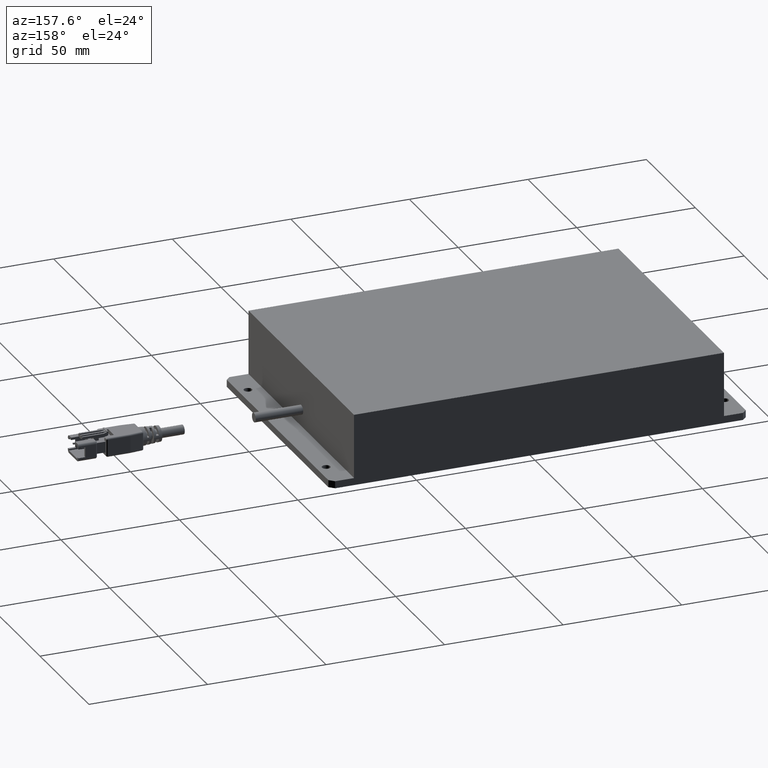
[diagram: clean part render]
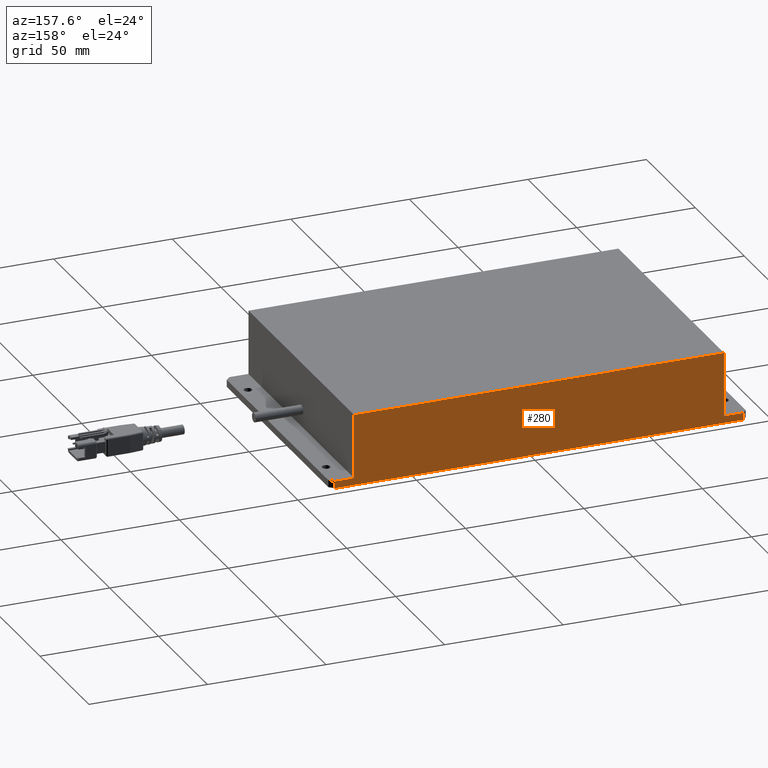
[diagram: same view with one face highlighted and labeled with its STEP entity id]
A machine part, auxiliary view. The second image highlights one B-rep face of the part: STEP entity #280.
In plain terms, the highlighted planar face has unit normal (0, 1, 0).
Its self-contained STEP definition (entity closure, byte-faithful):
#280=ADVANCED_FACE('0:8861',(#692),#693,.T.);
#692=FACE_OUTER_BOUND('',#1255,.T.);
#693=PLANE('',#1256);
#1255=EDGE_LOOP('',(#2262,#2263,#2264,#2265,#2266,#2267,#2268,#2269));
#1256=AXIS2_PLACEMENT_3D('',#2270,#2271,#2272);
#2262=ORIENTED_EDGE('',*,*,#3754,.F.);
#2263=ORIENTED_EDGE('',*,*,#3748,.T.);
#2264=ORIENTED_EDGE('',*,*,#3721,.T.);
#2265=ORIENTED_EDGE('',*,*,#3738,.T.);
#2266=ORIENTED_EDGE('',*,*,#3732,.F.);
#2267=ORIENTED_EDGE('',*,*,#3704,.F.);
#2268=ORIENTED_EDGE('',*,*,#3709,.T.);
#2269=ORIENTED_EDGE('',*,*,#3697,.T.);
#2270=CARTESIAN_POINT('',(-0.088,0.054,0.0));
#2271=DIRECTION('',(-0.0,1.0,0.0));
#2272=DIRECTION('',(0.0,0.0,1.0));
#3697=EDGE_CURVE('0:8906',#4314,#4311,#4315,.T.);
#3704=EDGE_CURVE('0:8903',#4325,#4321,#4327,.F.);
#3709=EDGE_CURVE('0:8987',#4325,#4314,#4333,.T.);
#3721=EDGE_CURVE('0:9002',#4353,#4354,#4355,.F.);
#3732=EDGE_CURVE('0:8990',#4321,#4373,#4374,.F.);
#3738=EDGE_CURVE('0:8969',#4354,#4373,#4382,.T.);
#3748=EDGE_CURVE('0:8927',#4393,#4353,#4394,.T.);
#3754=EDGE_CURVE('0:8984',#4393,#4311,#4401,.F.);
#4311=VERTEX_POINT('',#5210);
#4314=VERTEX_POINT('',#5214);
#4315=LINE('',#5215,#5216);
#4321=VERTEX_POINT('',#5224);
#4325=VERTEX_POINT('',#5230);
#4327=LINE('',#5233,#5234);
#4333=LINE('',#5240,#5241);
#4353=VERTEX_POINT('',#5266);
#4354=VERTEX_POINT('',#5267);
#4355=LINE('',#5268,#5269);
#4373=VERTEX_POINT('',#5294);
#4374=LINE('',#5295,#5296);
#4382=LINE('',#5308,#5309);
#4393=VERTEX_POINT('',#5325);
#4394=LINE('',#5326,#5327);
#4401=LINE('',#5335,#5336);
#5210=CARTESIAN_POINT('',(0.078,0.054,0.003));
#5214=CARTESIAN_POINT('',(0.078,0.054,0.03));
#5215=CARTESIAN_POINT('',(0.078,0.054,0.003));
#5216=VECTOR('',#6563,1.0);
#5224=CARTESIAN_POINT('',(-0.078,0.054,0.003));
#5230=CARTESIAN_POINT('',(-0.078,0.054,0.03));
#5233=CARTESIAN_POINT('',(-0.078,0.054,0.003));
#5234=VECTOR('',#6569,1.0);
#5240=CARTESIAN_POINT('',(-0.088,0.054,0.03));
#5241=VECTOR('',#6573,1.0);
#5266=CARTESIAN_POINT('',(0.086,0.054,0.0));
#5267=CARTESIAN_POINT('',(-0.086,0.054,0.0));
#5268=CARTESIAN_POINT('',(-0.088,0.054,0.0));
#5269=VECTOR('',#6591,1.0);
#5294=CARTESIAN_POINT('',(-0.086,0.054,0.003));
#5295=CARTESIAN_POINT('',(-0.088,0.054,0.003));
#5296=VECTOR('',#6605,1.0);
#5308=CARTESIAN_POINT('',(-0.086,0.054,0.0));
#5309=VECTOR('',#6610,1.0);
#5325=CARTESIAN_POINT('',(0.086,0.054,0.003));
#5326=CARTESIAN_POINT('',(0.086,0.054,0.0));
#5327=VECTOR('',#6616,1.0);
#5335=CARTESIAN_POINT('',(-0.088,0.054,0.003));
#5336=VECTOR('',#6621,1.0);
#6563=DIRECTION('',(0.0,-0.0,-1.0));
#6569=DIRECTION('',(0.0,0.0,1.0));
#6573=DIRECTION('',(1.0,0.0,0.0));
#6591=DIRECTION('',(1.0,0.0,0.0));
#6605=DIRECTION('',(1.0,0.0,0.0));
#6610=DIRECTION('',(0.0,0.0,1.0));
#6616=DIRECTION('',(0.0,0.0,-1.0));
#6621=DIRECTION('',(1.0,0.0,0.0));